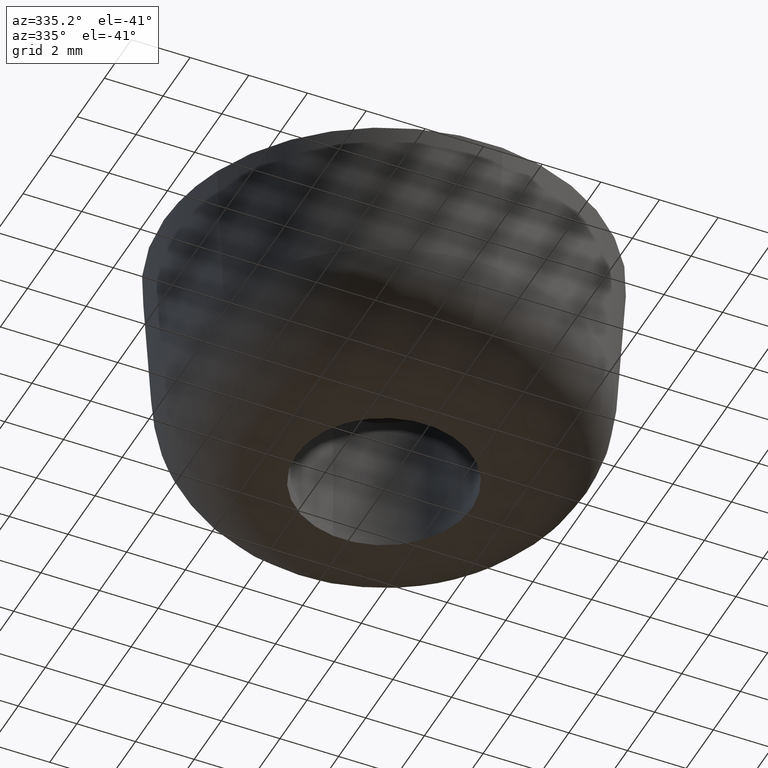
[diagram: clean part render]
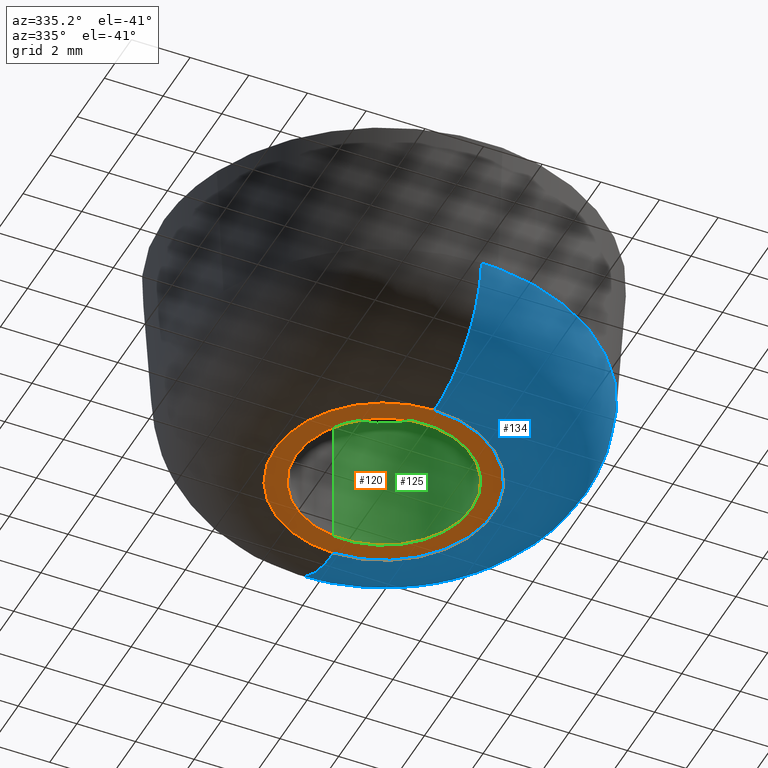
[diagram: same view with three faces highlighted in distinct colors, each labeled with its STEP entity id]
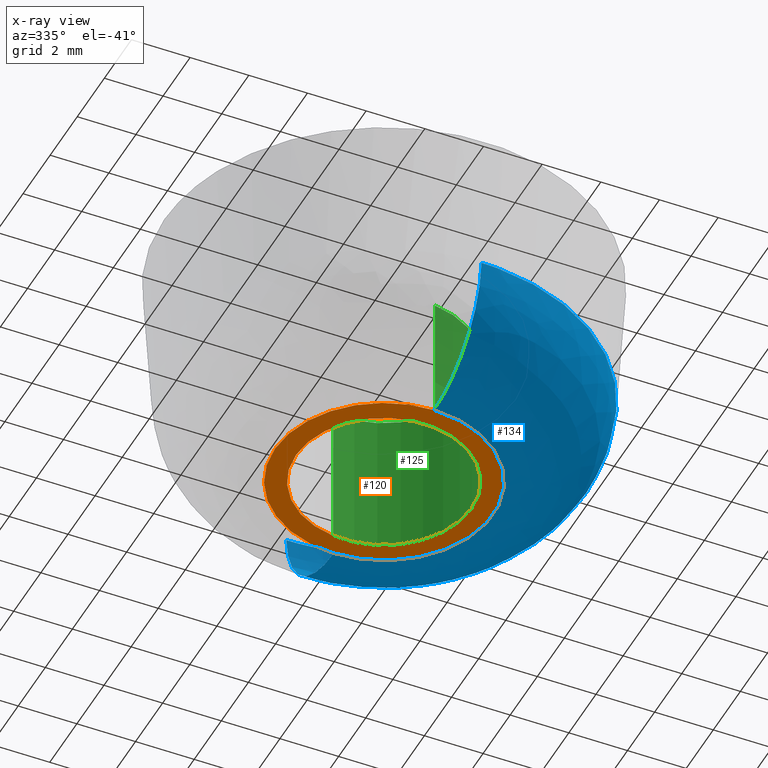
[diagram: x-ray of the same camera — body ghosted, the three highlighted faces saturated]
A machine part, auxiliary view with three faces highlighted in distinct colors.
The next image is the same camera in x-ray (body ghosted, the three faces saturated) — at least one of them is partly hidden behind the body in this view.
Their STEP definitions:

[orange] entity #120 — the highlighted planar face has unit normal (0, 0, 1).
#120=ADVANCED_FACE('',(#218,#219),#217,.F.);
#217=PLANE('',#429);
#218=FACE_OUTER_BOUND('',#430,.T.);
#219=FACE_BOUND('',#431,.T.);
#426=CARTESIAN_POINT('',(-4.82549730048E+000,-7.71508291918E+000,0.00000000000E+000));
#427=DIRECTION('',(0.00000000000E+000,0.00000000000E+000,1.00000000000E+000));
#428=DIRECTION('',(1.00000000000E+000,0.00000000000E+000,0.00000000000E+000));
#429=AXIS2_PLACEMENT_3D('',#426,#427,#428);
#430=EDGE_LOOP('',(#596,#597,#598));
#431=EDGE_LOOP('',(#599,#600,#601));
#596=ORIENTED_EDGE('',*,*,#712,.T.);
#597=ORIENTED_EDGE('',*,*,#713,.T.);
#598=ORIENTED_EDGE('',*,*,#714,.T.);
#599=ORIENTED_EDGE('',*,*,#715,.F.);
#600=ORIENTED_EDGE('',*,*,#716,.F.);
#601=ORIENTED_EDGE('',*,*,#717,.F.);
#712=EDGE_CURVE('',#953,#954,#955,.T.);
#713=EDGE_CURVE('',#954,#961,#962,.T.);
#714=EDGE_CURVE('',#961,#953,#968,.T.);
#715=EDGE_CURVE('',#974,#975,#976,.T.);
#716=EDGE_CURVE('',#982,#974,#983,.T.);
#717=EDGE_CURVE('',#975,#982,#989,.T.);
#953=VERTEX_POINT('',#1337);
#954=VERTEX_POINT('',#1338);
#955=CIRCLE('',#1342,3.71192100017E+000);
#961=VERTEX_POINT('',#1343);
#962=CIRCLE('',#1347,3.71192100017E+000);
#968=CIRCLE('',#1351,3.71192100017E+000);
#974=VERTEX_POINT('',#1352);
#975=VERTEX_POINT('',#1353);
#976=CIRCLE('',#1357,2.99999999999E+000);
#982=VERTEX_POINT('',#1358);
#983=CIRCLE('',#1362,2.99999999999E+000);
#989=CIRCLE('',#1366,2.99999999999E+000);
#1337=CARTESIAN_POINT('',(-3.71192100035E+000,-1.44328993201E-015,1.72532845672E-015));
#1338=CARTESIAN_POINT('',(3.85242470848E-004,3.71192098014E+000,8.62574696538E-016));
#1339=CARTESIAN_POINT('',(-1.74163350408E-010,-3.92303967089E-011,8.62664228360E-016));
#1340=DIRECTION('',(-2.32403714497E-016,2.59356227585E-031,-1.00000000000E+000));
#1341=DIRECTION('',(-1.00000000000E+000,1.05687680829E-011,2.32403714497E-016));
#1342=AXIS2_PLACEMENT_3D('',#1339,#1340,#1341);
#1343=CARTESIAN_POINT('',(-2.03886232904E-010,-3.71192100021E+000,8.62664228367E-016));
#1344=CARTESIAN_POINT('',(-1.74163350408E-010,-3.92303967089E-011,8.62664228360E-016));
#1345=DIRECTION('',(-2.32403714497E-016,2.59356227585E-031,-1.00000000000E+000));
#1346=DIRECTION('',(-1.00000000000E+000,1.05687680829E-011,2.32403714497E-016));
#1347=AXIS2_PLACEMENT_3D('',#1344,#1345,#1346);
#1348=CARTESIAN_POINT('',(-1.74163350408E-010,-3.92303967089E-011,8.62664228360E-016));
#1349=DIRECTION('',(-2.32403714497E-016,2.59356227585E-031,-1.00000000000E+000));
#1350=DIRECTION('',(-1.00000000000E+000,1.05687680829E-011,2.32403714497E-016));
#1351=AXIS2_PLACEMENT_3D('',#1348,#1349,#1350);
#1352=CARTESIAN_POINT('',(3.54101614556E-001,-2.97902870857E+000,8.80027462343E-016));
#1353=CARTESIAN_POINT('',(-2.99999999999E+000,-1.33226762955E-015,8.01356165399E-015));
#1354=CARTESIAN_POINT('',(6.96820379176E-012,3.16680015544E-012,6.60074611712E-016));
#1355=DIRECTION('',(-2.45116234743E-015,-3.65190638225E-016,-1.00000000000E+000));
#1356=DIRECTION('',(-1.00000000000E+000,-1.05565556296E-012,2.45116234743E-015));
#1357=AXIS2_PLACEMENT_3D('',#1354,#1355,#1356);
#1358=CARTESIAN_POINT('',(-3.54617583606E-001,2.97896733271E+000,4.41408898916E-016));
#1359=CARTESIAN_POINT('',(6.96820379176E-012,3.16680015544E-012,6.60074611712E-016));
#1360=DIRECTION('',(-2.45116234743E-015,-3.65190638225E-016,-1.00000000000E+000));
#1361=DIRECTION('',(-1.00000000000E+000,-1.05565556296E-012,2.45116234743E-015));
#1362=AXIS2_PLACEMENT_3D('',#1359,#1360,#1361);
#1363=CARTESIAN_POINT('',(6.96820379176E-012,3.16680015544E-012,6.60074611712E-016));
#1364=DIRECTION('',(-2.45116234743E-015,-3.65190638225E-016,-1.00000000000E+000));
#1365=DIRECTION('',(-1.00000000000E+000,-1.05565556296E-012,2.45116234743E-015));
#1366=AXIS2_PLACEMENT_3D('',#1363,#1364,#1365);

[blue] entity #134 — the highlighted face is a freeform B-spline surface patch.
#134=ADVANCED_FACE('',(#363),#362,.T.);
#362=( BOUNDED_SURFACE() B_SPLINE_SURFACE( 2,2,((#522,#523,#524,#525,#526),(#527,#528,#529,#530,#531),(#532,#533,#534,#535,#536),(#537,#538,#539,#540,#541),(#542,#543,#544,#545,#546)), .UNSPECIFIED.,.F.,.F.,.F.) B_SPLINE_SURFACE_WITH_KNOTS((3,2,3),(3,2,3),(0.00000000000E+000,5.00000000000E-001,1.00000000000E+000),(0.00000000000E+000,5.00000000000E-001,1.00000000000E+000), .UNSPECIFIED. ) GEOMETRIC_REPRESENTATION_ITEM() RATIONAL_B_SPLINE_SURFACE(((1.00000000000E+000,7.28827238004E-001,1.00000000000E+000,7.28827238004E-001,1.00000000000E+000),(7.07106781187E-001,5.15358682306E-001,7.07106781187E-001,5.15358682306E-001,7.07106781187E-001),(1.00000000000E+000,7.28827238004E-001,1.00000000000E+000,7.28827238004E-001,1.00000000000E+000),(7.07106781187E-001,5.15358682306E-001,7.07106781187E-001,5.15358682306E-001,7.07106781187E-001),(1.00000000000E+000,7.28827238004E-001,1.00000000000E+000,7.28827238004E-001,1.00000000000E+000))) REPRESENTATION_ITEM('') SURFACE() );
#363=FACE_OUTER_BOUND('',#547,.T.);
#522=CARTESIAN_POINT('',(-7.34227851922E-016,7.20510502479E+000,3.28167600000E+000));
#523=CARTESIAN_POINT('',(-3.62312408884E-016,7.00000027624E+000,6.09320270557E-016));
#524=CARTESIAN_POINT('',(-3.62299110140E-016,3.71192100000E+000,2.22044604925E-015));
#525=CARTESIAN_POINT('',(-3.62285811397E-016,4.23841723758E-001,1.82796081167E-015));
#526=CARTESIAN_POINT('',(-7.34199595330E-016,2.18736975213E-001,3.28167600000E+000));
#527=CARTESIAN_POINT('',(7.20510502479E+000,7.20510502479E+000,3.28167600000E+000));
#528=CARTESIAN_POINT('',(7.00000027624E+000,7.00000027624E+000,1.21864054111E-015));
#529=CARTESIAN_POINT('',(3.71192100000E+000,3.71192100000E+000,2.66453525910E-015));
#530=CARTESIAN_POINT('',(4.23841723758E-001,4.23841723758E-001,1.82796081167E-015));
#531=CARTESIAN_POINT('',(2.18736975213E-001,2.18736975213E-001,3.28167600000E+000));
#532=CARTESIAN_POINT('',(7.20510502479E+000,4.10446010099E-016,3.28167600000E+000));
#533=CARTESIAN_POINT('',(7.00000027624E+000,-6.46030196686E-017,2.43728108223E-015));
#534=CARTESIAN_POINT('',(3.71192100000E+000,-2.65953106462E-016,3.10862446895E-015));
#535=CARTESIAN_POINT('',(4.23841723758E-001,-4.67303193255E-016,1.82796081167E-015));
#536=CARTESIAN_POINT('',(2.18736975213E-001,-1.73739099725E-017,3.28167600000E+000));
#537=CARTESIAN_POINT('',(7.20510502479E+000,-7.20510502479E+000,3.28167600000E+000));
#538=CARTESIAN_POINT('',(7.00000027624E+000,-7.00000027624E+000,3.55137879257E-015));
#539=CARTESIAN_POINT('',(3.71192100000E+000,-3.71192100000E+000,3.92060922605E-015));
#540=CARTESIAN_POINT('',(4.23841723758E-001,-4.23841723758E-001,1.82796081167E-015));
#541=CARTESIAN_POINT('',(2.18736975213E-001,-2.18736975213E-001,3.28167600000E+000));
#542=CARTESIAN_POINT('',(1.48201311253E-016,-7.20510502479E+000,3.28167600000E+000));
#543=CARTESIAN_POINT('',(4.94997007806E-016,-7.00000027624E+000,2.43728108223E-015));
#544=CARTESIAN_POINT('',(9.23101329635E-017,-3.71192100000E+000,3.10862446895E-015));
#545=CARTESIAN_POINT('',(-3.10376741879E-016,-4.23841723758E-001,1.82796081167E-015));
#546=CARTESIAN_POINT('',(-7.07410272297E-016,-2.18736975213E-001,3.28167600000E+000));
#547=EDGE_LOOP('',(#675,#676,#677,#678,#679,#680,#681));
#675=ORIENTED_EDGE('',*,*,#709,.T.);
#676=ORIENTED_EDGE('',*,*,#708,.T.);
#677=ORIENTED_EDGE('',*,*,#707,.T.);
#678=ORIENTED_EDGE('',*,*,#699,.T.);
#679=ORIENTED_EDGE('',*,*,#747,.T.);
#680=ORIENTED_EDGE('',*,*,#713,.F.);
#681=ORIENTED_EDGE('',*,*,#748,.F.);
#699=EDGE_CURVE('',#865,#857,#866,.T.);
#707=EDGE_CURVE('',#919,#865,#920,.T.);
#708=EDGE_CURVE('',#926,#919,#927,.T.);
#709=EDGE_CURVE('',#933,#926,#934,.T.);
#713=EDGE_CURVE('',#954,#961,#962,.T.);
#747=EDGE_CURVE('',#857,#961,#1190,.T.);
#748=EDGE_CURVE('',#933,#954,#1196,.T.);
#857=VERTEX_POINT('',#1270);
#865=VERTEX_POINT('',#1276);
#866=CIRCLE('',#1280,7.20510481668E+000);
#919=VERTEX_POINT('',#1313);
#920=CIRCLE('',#1317,7.20510500000E+000);
#926=VERTEX_POINT('',#1318);
#927=CIRCLE('',#1322,7.20510501746E+000);
#933=VERTEX_POINT('',#1323);
#934=CIRCLE('',#1327,7.20510503330E+000);
#954=VERTEX_POINT('',#1338);
#961=VERTEX_POINT('',#1343);
#962=CIRCLE('',#1347,3.71192100017E+000);
#1190=(BOUNDED_CURVE() B_SPLINE_CURVE(2,(#1488,#1489,#1490),.UNSPECIFIED.,.F.,.F.) B_SPLINE_CURVE_WITH_KNOTS((3,3),(0.00000000000E+000,5.00000000000E-001),.UNSPECIFIED.) CURVE() GEOMETRIC_REPRESENTATION_ITEM() RATIONAL_B_SPLINE_CURVE((1.00000000000E+000,7.28827238004E-001,1.00000000000E+000)) REPRESENTATION_ITEM('') );
#1196=(BOUNDED_CURVE() B_SPLINE_CURVE(3,(#1491,#1492,#1493,#1494,#1495),.UNSPECIFIED.,.F.,.F.) B_SPLINE_CURVE_WITH_KNOTS((4,1,4),(0.00000000000E+000,2.50000051952E-001,5.00000091140E-001),.UNSPECIFIED.) CURVE() GEOMETRIC_REPRESENTATION_ITEM() RATIONAL_B_SPLINE_CURVE((1.00000000000E+000,1.00000000000E+000,1.00000000000E+000,1.00000000000E+000,1.00000000000E+000)) REPRESENTATION_ITEM('') );
#1270=CARTESIAN_POINT('',(-2.62309407459E-015,-7.20510500963E+000,3.28167599960E+000));
#1276=CARTESIAN_POINT('',(5.65312500498E-001,-7.18289355606E+000,3.28167599999E+000));
#1277=CARTESIAN_POINT('',(-1.15146080670E-007,-1.92944391131E-007,3.28167586783E+000));
#1278=DIRECTION('',(1.41739873636E-009,-1.82879474324E-008,-1.00000000000E+000));
#1279=DIRECTION('',(-7.84600127309E-002,9.96917261563E-001,-1.83427795968E-008));
#1280=AXIS2_PLACEMENT_3D('',#1277,#1278,#1279);
#1313=CARTESIAN_POINT('',(7.20510500000E+000,0.00000000000E+000,3.28167600000E+000));
#1314=CARTESIAN_POINT('',(4.31521485211E-012,-6.56807941368E-013,3.28167599999E+000));
#1315=DIRECTION('',(9.31310225297E-013,2.43534520832E-028,-1.00000000000E+000));
#1316=DIRECTION('',(-1.00000000000E+000,-9.11586911459E-014,-9.31310225297E-013));
#1317=AXIS2_PLACEMENT_3D('',#1314,#1315,#1316);
#1318=CARTESIAN_POINT('',(1.19047542912E+000,7.10607532268E+000,3.28167599922E+000));
#1319=CARTESIAN_POINT('',(-1.74594365632E-008,-2.26142216064E-009,3.28167599906E+000));
#1320=DIRECTION('',(1.30200695588E-010,2.38919400887E-017,-1.00000000000E+000));
#1321=DIRECTION('',(-1.65226661332E-001,-9.86255621219E-001,-2.15126497987E-011));
#1322=AXIS2_PLACEMENT_3D('',#1319,#1320,#1321);
#1323=CARTESIAN_POINT('',(-1.18533839415E-003,7.20510491124E+000,3.28167599889E+000));
#1324=CARTESIAN_POINT('',(1.97422536097E-008,-2.45502262963E-008,3.28167599801E+000));
#1325=DIRECTION('',(-1.61868177277E-010,1.22524338182E-010,-1.00000000000E+000));
#1326=DIRECTION('',(9.98736956442E-001,-5.02443214414E-002,-1.67819882950E-010));
#1327=AXIS2_PLACEMENT_3D('',#1324,#1325,#1326);
#1338=CARTESIAN_POINT('',(3.85242470848E-004,3.71192098014E+000,8.62574696538E-016));
#1343=CARTESIAN_POINT('',(-2.03886232904E-010,-3.71192100021E+000,8.62664228367E-016));
#1344=CARTESIAN_POINT('',(-1.74163350408E-010,-3.92303967089E-011,8.62664228360E-016));
#1345=DIRECTION('',(-2.32403714497E-016,2.59356227585E-031,-1.00000000000E+000));
#1346=DIRECTION('',(-1.00000000000E+000,1.05687680829E-011,2.32403714497E-016));
#1347=AXIS2_PLACEMENT_3D('',#1344,#1345,#1346);
#1488=CARTESIAN_POINT('',(-1.61654044997E-015,-7.20510502479E+000,3.28167600000E+000));
#1489=CARTESIAN_POINT('',(-1.21950857866E-015,-7.00000027624E+000,3.04660135278E-015));
#1490=CARTESIAN_POINT('',(-8.16848301304E-016,-3.71192100000E+000,3.10862446895E-015));
#1491=CARTESIAN_POINT('',(0.00000000000E+000,7.20510502479E+000,3.28167600000E+000));
#1492=CARTESIAN_POINT('',(1.08956281830E-016,7.15726483502E+000,2.41045395232E+000));
#1493=CARTESIAN_POINT('',(2.02431039596E-016,6.34587754587E+000,6.96280991921E-001));
#1494=CARTESIAN_POINT('',(-7.22203613008E-020,4.58442968034E+000,-6.59852884455E-003));
#1495=CARTESIAN_POINT('',(-1.48029771488E-016,3.71192012635E+000,1.11109855170E-013));

[green] entity #125 — the highlighted cylindrical surface (partial cylindrical patch) has radius 3 mm, axis along (0, 0, 1).
#125=ADVANCED_FACE('',(#273),#272,.F.);
#272=CYLINDRICAL_SURFACE('',#459,3.00000000000E+000);
#273=FACE_OUTER_BOUND('',#460,.T.);
#456=CARTESIAN_POINT('',(3.64937661851E-014,4.60760898924E-015,5.12500000000E+000));
#457=DIRECTION('',(1.40314912240E-014,1.51878360787E-015,1.00000000000E+000));
#458=DIRECTION('',(1.18034234657E-001,-9.93009526364E-001,-1.48029736617E-016));
#459=AXIS2_PLACEMENT_3D('',#456,#457,#458);
#460=EDGE_LOOP('',(#627,#628,#629,#630));
#627=ORIENTED_EDGE('',*,*,#716,.T.);
#628=ORIENTED_EDGE('',*,*,#739,.T.);
#629=ORIENTED_EDGE('',*,*,#737,.F.);
#630=ORIENTED_EDGE('',*,*,#740,.F.);
#716=EDGE_CURVE('',#982,#974,#983,.T.);
#737=EDGE_CURVE('',#1122,#1129,#1130,.T.);
#739=EDGE_CURVE('',#974,#1129,#1142,.T.);
#740=EDGE_CURVE('',#982,#1122,#1148,.T.);
#974=VERTEX_POINT('',#1352);
#982=VERTEX_POINT('',#1358);
#983=CIRCLE('',#1362,2.99999999999E+000);
#1122=VERTEX_POINT('',#1458);
#1129=VERTEX_POINT('',#1463);
#1130=CIRCLE('',#1467,2.99999950427E+000);
#1142=(BOUNDED_CURVE() B_SPLINE_CURVE(1,(#1472,#1473),.UNSPECIFIED.,.F.,.F.) B_SPLINE_CURVE_WITH_KNOTS((2,2),(8.33333383004E-002,9.16666664635E-001),.UNSPECIFIED.) CURVE() GEOMETRIC_REPRESENTATION_ITEM() RATIONAL_B_SPLINE_CURVE((1.00000000000E+000,1.00000000000E+000)) REPRESENTATION_ITEM('') );
#1148=(BOUNDED_CURVE() B_SPLINE_CURVE(1,(#1474,#1475),.UNSPECIFIED.,.F.,.F.) B_SPLINE_CURVE_WITH_KNOTS((2,2),(8.33333333333E-002,9.16666666667E-001),.UNSPECIFIED.) CURVE() GEOMETRIC_REPRESENTATION_ITEM() RATIONAL_B_SPLINE_CURVE((7.50000000000E-001,7.50000000000E-001)) REPRESENTATION_ITEM('') );
#1352=CARTESIAN_POINT('',(3.54101614556E-001,-2.97902870857E+000,8.80027462343E-016));
#1358=CARTESIAN_POINT('',(-3.54617583606E-001,2.97896733271E+000,4.41408898916E-016));
#1359=CARTESIAN_POINT('',(6.96820379176E-012,3.16680015544E-012,6.60074611712E-016));
#1360=DIRECTION('',(-2.45116234743E-015,-3.65190638225E-016,-1.00000000000E+000));
#1361=DIRECTION('',(-1.00000000000E+000,-1.05565556296E-012,2.45116234743E-015));
#1362=AXIS2_PLACEMENT_3D('',#1359,#1360,#1361);
#1458=CARTESIAN_POINT('',(-3.54617504757E-001,2.97896631753E+000,5.00000000000E+000));
#1463=CARTESIAN_POINT('',(3.54101617573E-001,-2.97902873427E+000,5.00000000000E+000));
#1464=CARTESIAN_POINT('',(4.95728056604E-007,-4.66334389104E-007,5.00000000000E+000));
#1465=DIRECTION('',(8.88178615278E-016,-3.14018491737E-016,-1.00000000000E+000));
#1466=DIRECTION('',(-1.00000000000E+000,1.55444771371E-007,-8.88178664090E-016));
#1467=AXIS2_PLACEMENT_3D('',#1464,#1465,#1466);
#1472=CARTESIAN_POINT('',(3.54102703970E-001,-2.97902857909E+000,2.98022821421E-008));
#1473=CARTESIAN_POINT('',(3.54102703970E-001,-2.97902857909E+000,4.99999998781E+000));
#1474=CARTESIAN_POINT('',(-3.54102703970E-001,2.97902857909E+000,-9.25185853854E-015));
#1475=CARTESIAN_POINT('',(-3.54102703970E-001,2.97902857909E+000,5.00000000000E+000));